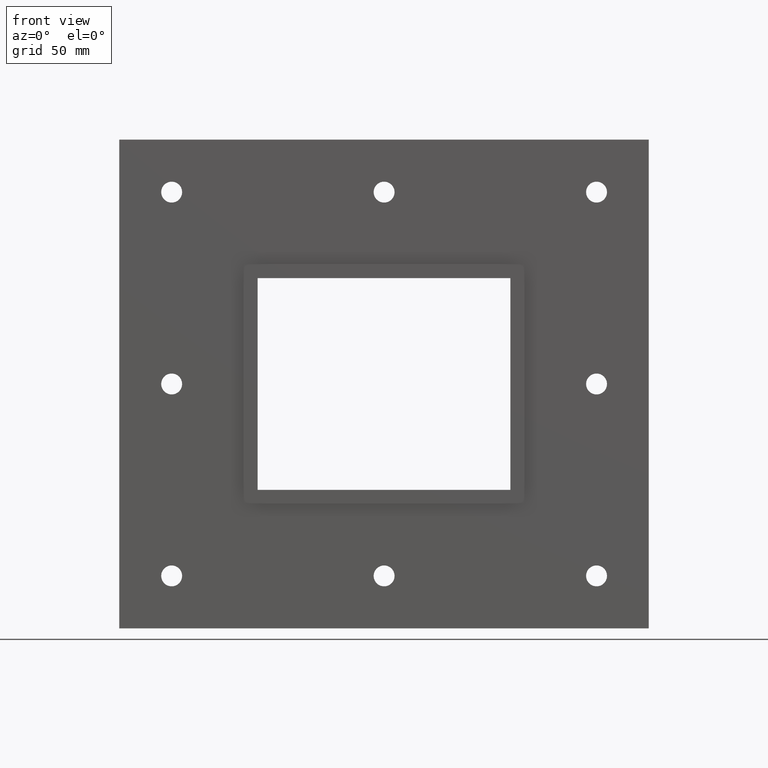
[diagram: clean part render]
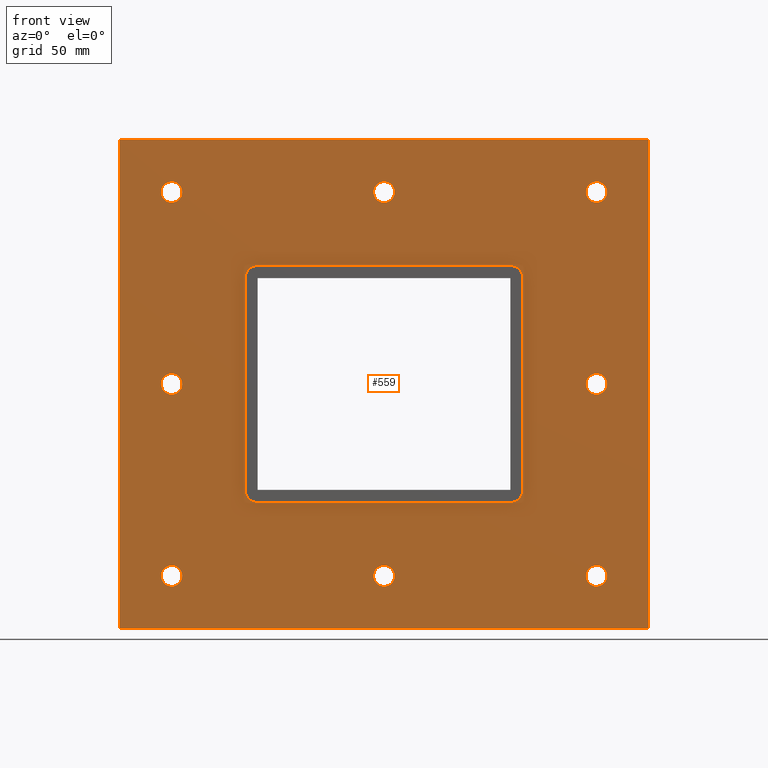
[diagram: same view with one face highlighted and labeled with its STEP entity id]
A machine part, front view. The second image highlights one B-rep face of the part: STEP entity #559.
In plain terms, the highlighted planar face has unit normal (0, 1, 0).
Its self-contained STEP definition (entity closure, byte-faithful):
#84=CARTESIAN_POINT('',(-96.250000000000014,0.0,-91.5));
#85=VERTEX_POINT('',#84);
#86=CARTESIAN_POINT('',(-101.25000000000001,0.0,-91.5));
#87=DIRECTION('',(0.0,1.0,0.0));
#88=DIRECTION('',(1.0,0.0,0.0));
#89=AXIS2_PLACEMENT_3D('',#86,#87,#88);
#90=CIRCLE('',#89,5.0);
#91=EDGE_CURVE('',#85,#85,#90,.T.);
#112=CARTESIAN_POINT('',(106.34999999999999,0.0,0.0));
#113=VERTEX_POINT('',#112);
#114=CARTESIAN_POINT('',(101.34999999999999,0.0,0.0));
#115=DIRECTION('',(0.0,1.0,0.0));
#116=DIRECTION('',(1.0,0.0,0.0));
#117=AXIS2_PLACEMENT_3D('',#114,#115,#116);
#118=CIRCLE('',#117,5.0);
#119=EDGE_CURVE('',#113,#113,#118,.T.);
#140=CARTESIAN_POINT('',(-96.250000000000014,0.0,0.0));
#141=VERTEX_POINT('',#140);
#142=CARTESIAN_POINT('',(-101.25000000000001,0.0,0.0));
#143=DIRECTION('',(0.0,1.0,0.0));
#144=DIRECTION('',(1.0,0.0,0.0));
#145=AXIS2_PLACEMENT_3D('',#142,#143,#144);
#146=CIRCLE('',#145,5.0);
#147=EDGE_CURVE('',#141,#141,#146,.T.);
#168=CARTESIAN_POINT('',(5.04999999999999,0.0,91.5));
#169=VERTEX_POINT('',#168);
#170=CARTESIAN_POINT('',(0.04999999999999,0.0,91.5));
#171=DIRECTION('',(0.0,1.0,0.0));
#172=DIRECTION('',(1.0,0.0,0.0));
#173=AXIS2_PLACEMENT_3D('',#170,#171,#172);
#174=CIRCLE('',#173,5.0);
#175=EDGE_CURVE('',#169,#169,#174,.T.);
#196=CARTESIAN_POINT('',(5.04999999999999,0.0,-91.5));
#197=VERTEX_POINT('',#196);
#198=CARTESIAN_POINT('',(0.04999999999999,0.0,-91.5));
#199=DIRECTION('',(0.0,1.0,0.0));
#200=DIRECTION('',(1.0,0.0,0.0));
#201=AXIS2_PLACEMENT_3D('',#198,#199,#200);
#202=CIRCLE('',#201,5.0);
#203=EDGE_CURVE('',#197,#197,#202,.T.);
#224=CARTESIAN_POINT('',(106.34999999999999,0.0,-91.5));
#225=VERTEX_POINT('',#224);
#226=CARTESIAN_POINT('',(101.34999999999999,0.0,-91.5));
#227=DIRECTION('',(0.0,1.0,0.0));
#228=DIRECTION('',(1.0,0.0,0.0));
#229=AXIS2_PLACEMENT_3D('',#226,#227,#228);
#230=CIRCLE('',#229,5.0);
#231=EDGE_CURVE('',#225,#225,#230,.T.);
#252=CARTESIAN_POINT('',(-96.250000000000014,0.0,91.5));
#253=VERTEX_POINT('',#252);
#254=CARTESIAN_POINT('',(-101.25000000000001,0.0,91.5));
#255=DIRECTION('',(0.0,1.0,0.0));
#256=DIRECTION('',(1.0,0.0,0.0));
#257=AXIS2_PLACEMENT_3D('',#254,#255,#256);
#258=CIRCLE('',#257,5.0);
#259=EDGE_CURVE('',#253,#253,#258,.T.);
#280=CARTESIAN_POINT('',(106.34999999999999,0.0,91.5));
#281=VERTEX_POINT('',#280);
#282=CARTESIAN_POINT('',(101.34999999999999,0.0,91.5));
#283=DIRECTION('',(0.0,1.0,0.0));
#284=DIRECTION('',(1.0,0.0,0.0));
#285=AXIS2_PLACEMENT_3D('',#282,#283,#284);
#286=CIRCLE('',#285,5.0);
#287=EDGE_CURVE('',#281,#281,#286,.T.);
#426=CARTESIAN_POINT('',(8.781167E-015,0.0,8.653108E-015));
#427=DIRECTION('',(0.0,1.0,0.0));
#428=DIRECTION('',(0.0,0.0,1.0));
#429=AXIS2_PLACEMENT_3D('',#426,#427,#428);
#430=PLANE('',#429);
#431=CARTESIAN_POINT('',(-126.24999999999999,0.0,116.50000000000003));
#432=VERTEX_POINT('',#431);
#433=CARTESIAN_POINT('',(126.25,0.0,116.50000000000003));
#434=VERTEX_POINT('',#433);
#435=CARTESIAN_POINT('',(-126.24999999999999,0.0,116.50000000000003));
#436=DIRECTION('',(1.0,0.0,0.0));
#437=VECTOR('',#436,252.5);
#438=LINE('',#435,#437);
#439=EDGE_CURVE('',#432,#434,#438,.T.);
#440=ORIENTED_EDGE('',*,*,#439,.F.);
#441=CARTESIAN_POINT('',(-126.24999999999999,0.0,-116.5));
#442=VERTEX_POINT('',#441);
#443=CARTESIAN_POINT('',(-126.24999999999999,0.0,-116.5));
#444=DIRECTION('',(0.0,0.0,1.0));
#445=VECTOR('',#444,233.00000000000006);
#446=LINE('',#443,#445);
#447=EDGE_CURVE('',#442,#432,#446,.T.);
#448=ORIENTED_EDGE('',*,*,#447,.F.);
#449=CARTESIAN_POINT('',(126.25,0.0,-116.5));
#450=VERTEX_POINT('',#449);
#451=CARTESIAN_POINT('',(126.25,0.0,-116.5));
#452=DIRECTION('',(-1.0,0.0,0.0));
#453=VECTOR('',#452,252.5);
#454=LINE('',#451,#453);
#455=EDGE_CURVE('',#450,#442,#454,.T.);
#456=ORIENTED_EDGE('',*,*,#455,.F.);
#457=CARTESIAN_POINT('',(126.25,0.0,116.50000000000003));
#458=DIRECTION('',(0.0,0.0,-1.0));
#459=VECTOR('',#458,233.00000000000006);
#460=LINE('',#457,#459);
#461=EDGE_CURVE('',#434,#450,#460,.T.);
#462=ORIENTED_EDGE('',*,*,#461,.F.);
#463=EDGE_LOOP('',(#440,#448,#456,#462));
#464=FACE_OUTER_BOUND('',#463,.T.);
#465=ORIENTED_EDGE('',*,*,#91,.T.);
#466=EDGE_LOOP('',(#465));
#467=FACE_BOUND('',#466,.T.);
#468=ORIENTED_EDGE('',*,*,#119,.T.);
#469=EDGE_LOOP('',(#468));
#470=FACE_BOUND('',#469,.T.);
#471=ORIENTED_EDGE('',*,*,#147,.T.);
#472=EDGE_LOOP('',(#471));
#473=FACE_BOUND('',#472,.T.);
#474=ORIENTED_EDGE('',*,*,#175,.T.);
#475=EDGE_LOOP('',(#474));
#476=FACE_BOUND('',#475,.T.);
#477=ORIENTED_EDGE('',*,*,#203,.T.);
#478=EDGE_LOOP('',(#477));
#479=FACE_BOUND('',#478,.T.);
#480=ORIENTED_EDGE('',*,*,#231,.T.);
#481=EDGE_LOOP('',(#480));
#482=FACE_BOUND('',#481,.T.);
#483=ORIENTED_EDGE('',*,*,#259,.T.);
#484=EDGE_LOOP('',(#483));
#485=FACE_BOUND('',#484,.T.);
#486=ORIENTED_EDGE('',*,*,#287,.T.);
#487=EDGE_LOOP('',(#486));
#488=FACE_BOUND('',#487,.T.);
#489=CARTESIAN_POINT('',(-66.250000000000014,0.0,-50.500000000000007));
#490=VERTEX_POINT('',#489);
#491=CARTESIAN_POINT('',(-60.25,0.0,-56.500000000000014));
#492=VERTEX_POINT('',#491);
#493=CARTESIAN_POINT('',(-60.25,0.0,-50.500000000000007));
#494=DIRECTION('',(0.0,-1.0,0.0));
#495=DIRECTION('',(-0.707106781186548,0.0,-0.707106781186548));
#496=AXIS2_PLACEMENT_3D('',#493,#494,#495);
#497=CIRCLE('',#496,6.000000000000002);
#498=EDGE_CURVE('',#490,#492,#497,.T.);
#499=ORIENTED_EDGE('',*,*,#498,.F.);
#500=CARTESIAN_POINT('',(-66.250000000000014,0.0,50.500000000000007));
#501=VERTEX_POINT('',#500);
#502=CARTESIAN_POINT('',(-66.250000000000014,0.0,50.5));
#503=DIRECTION('',(0.0,0.0,-1.0));
#504=VECTOR('',#503,101.0);
#505=LINE('',#502,#504);
#506=EDGE_CURVE('',#501,#490,#505,.T.);
#507=ORIENTED_EDGE('',*,*,#506,.F.);
#508=CARTESIAN_POINT('',(-60.25,0.0,56.5));
#509=VERTEX_POINT('',#508);
#510=CARTESIAN_POINT('',(-60.25,0.0,50.500000000000007));
#511=DIRECTION('',(0.0,-1.0,0.0));
#512=DIRECTION('',(-0.707106781186549,0.0,0.707106781186546));
#513=AXIS2_PLACEMENT_3D('',#510,#511,#512);
#514=CIRCLE('',#513,6.000000000000001);
#515=EDGE_CURVE('',#509,#501,#514,.T.);
#516=ORIENTED_EDGE('',*,*,#515,.F.);
#517=CARTESIAN_POINT('',(60.249999999999986,0.0,56.5));
#518=VERTEX_POINT('',#517);
#519=CARTESIAN_POINT('',(60.249999999999986,0.0,56.5));
#520=DIRECTION('',(-1.0,0.0,0.0));
#521=VECTOR('',#520,120.49999999999999);
#522=LINE('',#519,#521);
#523=EDGE_CURVE('',#518,#509,#522,.T.);
#524=ORIENTED_EDGE('',*,*,#523,.F.);
#525=CARTESIAN_POINT('',(66.249999999999986,0.0,50.500000000000007));
#526=VERTEX_POINT('',#525);
#527=CARTESIAN_POINT('',(60.249999999999986,0.0,50.500000000000007));
#528=DIRECTION('',(0.0,-1.0,0.0));
#529=DIRECTION('',(0.707106781186549,0.0,0.707106781186546));
#530=AXIS2_PLACEMENT_3D('',#527,#528,#529);
#531=CIRCLE('',#530,6.000000000000001);
#532=EDGE_CURVE('',#526,#518,#531,.T.);
#533=ORIENTED_EDGE('',*,*,#532,.F.);
#534=CARTESIAN_POINT('',(66.249999999999986,0.0,-50.500000000000007));
#535=VERTEX_POINT('',#534);
#536=CARTESIAN_POINT('',(66.249999999999986,0.0,-50.500000000000014));
#537=DIRECTION('',(0.0,0.0,1.0));
#538=VECTOR('',#537,101.00000000000003);
#539=LINE('',#536,#538);
#540=EDGE_CURVE('',#535,#526,#539,.T.);
#541=ORIENTED_EDGE('',*,*,#540,.F.);
#542=CARTESIAN_POINT('',(60.249999999999986,0.0,-56.500000000000014));
#543=VERTEX_POINT('',#542);
#544=CARTESIAN_POINT('',(60.249999999999986,0.0,-50.500000000000007));
#545=DIRECTION('',(0.0,-1.0,0.0));
#546=DIRECTION('',(0.707106781186548,0.0,-0.707106781186548));
#547=AXIS2_PLACEMENT_3D('',#544,#545,#546);
#548=CIRCLE('',#547,6.000000000000002);
#549=EDGE_CURVE('',#543,#535,#548,.T.);
#550=ORIENTED_EDGE('',*,*,#549,.F.);
#551=CARTESIAN_POINT('',(-60.25,0.0,-56.500000000000014));
#552=DIRECTION('',(1.0,0.0,0.0));
#553=VECTOR('',#552,120.49999999999999);
#554=LINE('',#551,#553);
#555=EDGE_CURVE('',#492,#543,#554,.T.);
#556=ORIENTED_EDGE('',*,*,#555,.F.);
#557=EDGE_LOOP('',(#499,#507,#516,#524,#533,#541,#550,#556));
#558=FACE_BOUND('',#557,.T.);
#559=ADVANCED_FACE('',(#464,#467,#470,#473,#476,#479,#482,#485,#488,#558),#430,.F.);